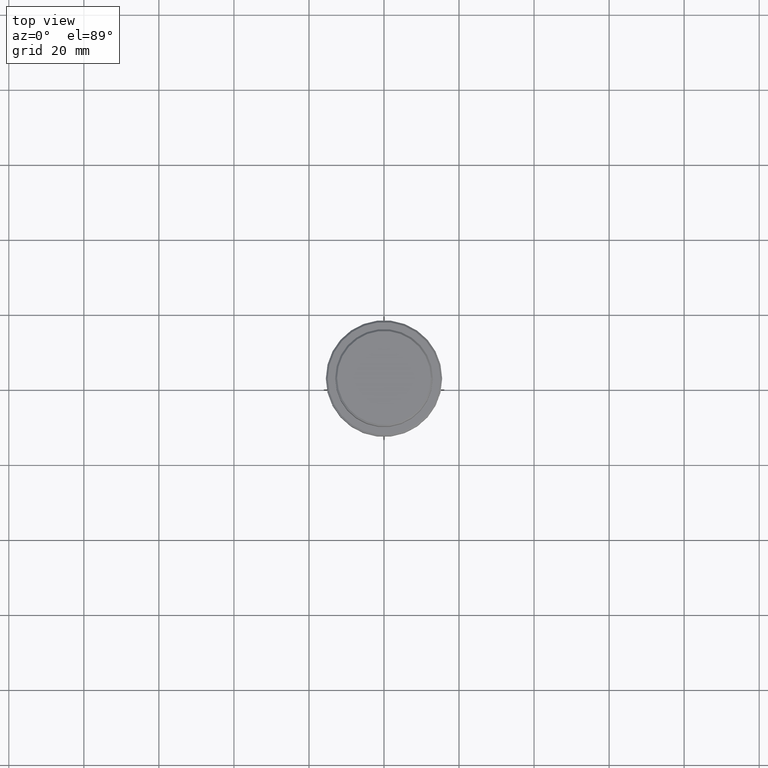
[diagram: clean part render]
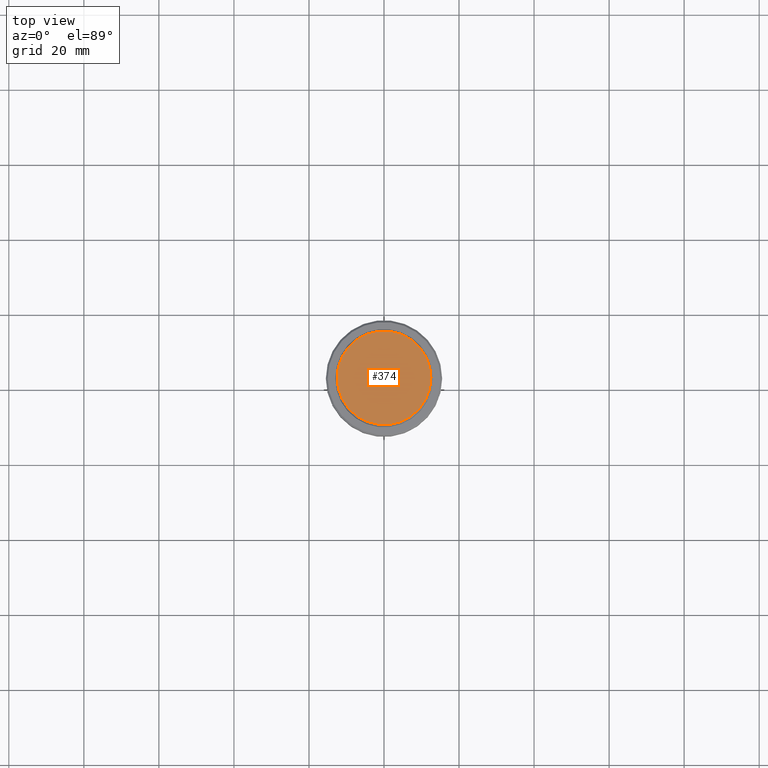
[diagram: same view with one face highlighted and labeled with its STEP entity id]
A machine part, top view. The second image highlights one B-rep face of the part: STEP entity #374.
In plain terms, the highlighted planar face has unit normal (0, -0, 1).
Its self-contained STEP definition (entity closure, byte-faithful):
#87 = FACE_OUTER_BOUND ( 'NONE', #945, .T. ) ;
#200 = DIRECTION ( 'NONE',  ( 0.000000000000000000, -0.000000000000000000, 1.000000000000000000 ) ) ;
#213 = AXIS2_PLACEMENT_3D ( 'NONE', #749, #200, #968 ) ;
#226 = CARTESIAN_POINT ( 'NONE',  ( 0.000000000000000000, 0.000000000000000000, 0.000000000000000000 ) ) ;
#280 = CARTESIAN_POINT ( 'NONE',  ( -12.50000000000004086, 0.000000000000000000, 0.000000000000000000 ) ) ;
#288 = DIRECTION ( 'NONE',  ( 1.000000000000000000, 0.000000000000000000, 0.000000000000000000 ) ) ;
#339 = AXIS2_PLACEMENT_3D ( 'NONE', #1035, #503, #288 ) ;
#374 = ADVANCED_FACE ( 'NONE', ( #87 ), #973, .T. ) ;
#481 = CIRCLE ( 'NONE', #339, 12.50000000000004086 ) ;
#503 = DIRECTION ( 'NONE',  ( -0.000000000000000000, -0.000000000000000000, 1.000000000000000000 ) ) ;
#553 = AXIS2_PLACEMENT_3D ( 'NONE', #226, #777, #997 ) ;
#749 = CARTESIAN_POINT ( 'NONE',  ( 0.000000000000000000, 0.000000000000000000, 0.000000000000000000 ) ) ;
#777 = DIRECTION ( 'NONE',  ( -0.000000000000000000, -0.000000000000000000, 1.000000000000000000 ) ) ;
#787 = CARTESIAN_POINT ( 'NONE',  ( 12.50000000000004086, 1.561424668912877675E-15, 0.000000000000000000 ) ) ;
#919 = EDGE_CURVE ( 'NONE', #1278, #1245, #481, .T. ) ;
#945 = EDGE_LOOP ( 'NONE', ( #1086, #1365 ) ) ;
#968 = DIRECTION ( 'NONE',  ( 1.000000000000000000, 0.000000000000000000, 0.000000000000000000 ) ) ;
#973 = PLANE ( 'NONE',  #213 ) ;
#997 = DIRECTION ( 'NONE',  ( 1.000000000000000000, 0.000000000000000000, 0.000000000000000000 ) ) ;
#1035 = CARTESIAN_POINT ( 'NONE',  ( 0.000000000000000000, 0.000000000000000000, 0.000000000000000000 ) ) ;
#1086 = ORIENTED_EDGE ( 'NONE', *, *, #919, .T. ) ;
#1215 = EDGE_CURVE ( 'NONE', #1245, #1278, #1300, .T. ) ;
#1245 = VERTEX_POINT ( 'NONE', #787 ) ;
#1278 = VERTEX_POINT ( 'NONE', #280 ) ;
#1300 = CIRCLE ( 'NONE', #553, 12.50000000000004086 ) ;
#1365 = ORIENTED_EDGE ( 'NONE', *, *, #1215, .T. ) ;